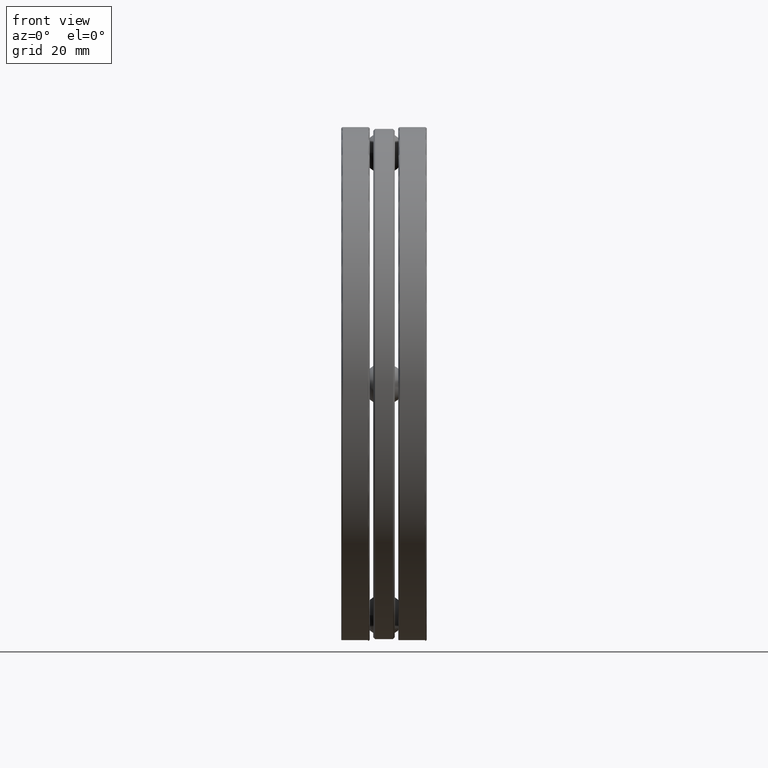
[diagram: clean part render]
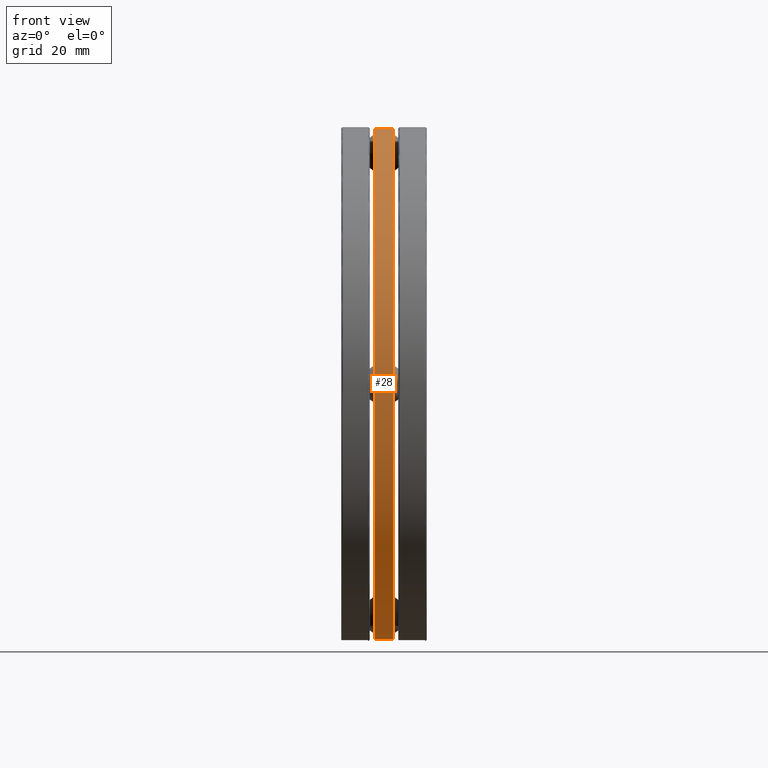
[diagram: same view with one face highlighted and labeled with its STEP entity id]
A machine part, front view. The second image highlights one B-rep face of the part: STEP entity #28.
In plain terms, the highlighted cylindrical surface (bore or boss wall) has radius 74.4982 mm, axis along (-1, -0, -0).
Its self-contained STEP definition (entity closure, byte-faithful):
#11 = CIRCLE ( 'NONE', #439, 2.933000000000000300 ) ;
#24 = DIRECTION ( 'NONE',  ( -1.000000000000000000, -0.0000000000000000000, -0.0000000000000000000 ) ) ;
#25 = DIRECTION ( 'NONE',  ( -1.000000000000000000, -0.0000000000000000000, -0.0000000000000000000 ) ) ;
#28 = ADVANCED_FACE ( 'NONE', ( #444, #405 ), #434, .T. ) ;
#36 = CARTESIAN_POINT ( 'NONE',  ( -0.1029999999999999900, 0.0000000000000000000, 2.933000000000000300 ) ) ;
#81 = AXIS2_PLACEMENT_3D ( 'NONE', #601, #356, #307 ) ;
#146 = ORIENTED_EDGE ( 'NONE', *, *, #766, .F. ) ;
#173 = AXIS2_PLACEMENT_3D ( 'NONE', #478, #25, #485 ) ;
#260 = EDGE_LOOP ( 'NONE', ( #435 ) ) ;
#303 = CARTESIAN_POINT ( 'NONE',  ( 0.1029999999999999900, 0.0000000000000000000, 0.0000000000000000000 ) ) ;
#307 = DIRECTION ( 'NONE',  ( 0.0000000000000000000, 0.0000000000000000000, 1.000000000000000000 ) ) ;
#356 = DIRECTION ( 'NONE',  ( -1.000000000000000000, -0.0000000000000000000, -0.0000000000000000000 ) ) ;
#365 = CARTESIAN_POINT ( 'NONE',  ( 0.1029999999999999900, 0.0000000000000000000, 2.933000000000000300 ) ) ;
#405 = FACE_OUTER_BOUND ( 'NONE', #406, .T. ) ;
#406 = EDGE_LOOP ( 'NONE', ( #146 ) ) ;
#418 = DIRECTION ( 'NONE',  ( 0.0000000000000000000, 0.0000000000000000000, 1.000000000000000000 ) ) ;
#434 = CYLINDRICAL_SURFACE ( 'NONE', #173, 2.933000000000000300 ) ;
#435 = ORIENTED_EDGE ( 'NONE', *, *, #693, .T. ) ;
#439 = AXIS2_PLACEMENT_3D ( 'NONE', #303, #24, #418 ) ;
#444 = FACE_OUTER_BOUND ( 'NONE', #260, .T. ) ;
#478 = CARTESIAN_POINT ( 'NONE',  ( 0.0000000000000000000, 0.0000000000000000000, 0.0000000000000000000 ) ) ;
#485 = DIRECTION ( 'NONE',  ( 0.0000000000000000000, 0.0000000000000000000, 1.000000000000000000 ) ) ;
#566 = CIRCLE ( 'NONE', #81, 2.933000000000000300 ) ;
#601 = CARTESIAN_POINT ( 'NONE',  ( -0.1029999999999999900, 0.0000000000000000000, 0.0000000000000000000 ) ) ;
#670 = VERTEX_POINT ( 'NONE', #36 ) ;
#693 = EDGE_CURVE ( 'NONE', #731, #731, #11, .T. ) ;
#731 = VERTEX_POINT ( 'NONE', #365 ) ;
#766 = EDGE_CURVE ( 'NONE', #670, #670, #566, .T. ) ;